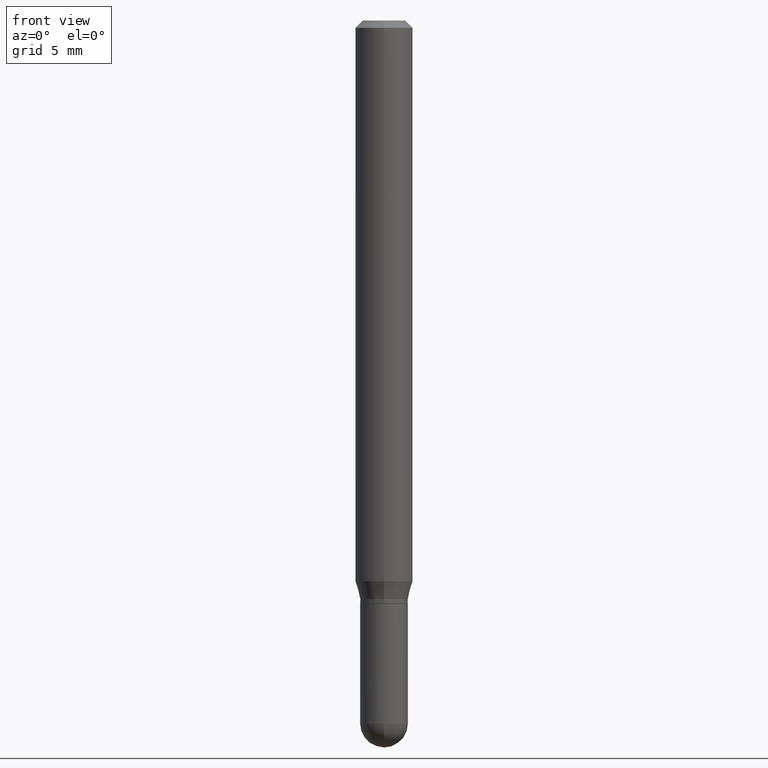
[diagram: clean part render]
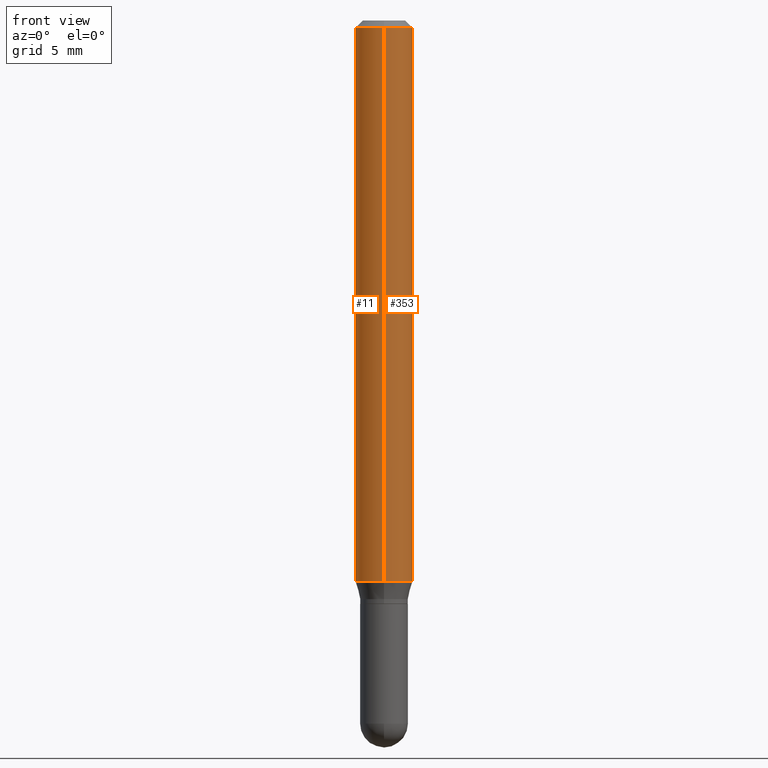
[diagram: same view with one multi-face feature highlighted, each face labeled with its STEP entity id]
A machine part, front view. The highlighted faces form ONE feature: a constant-radius fillet chain: 2 tangent blend faces with common blend radius 1.4999 mm. The faces share edges in the B-rep.
Their STEP definitions:
[1] entity #353 (Cylinder):
#37 = DIRECTION ( 'NONE',  ( -6.982962677686265922E-15, -1.000000000000000000, 3.505890868245046092E-15 ) ) ;
#38 = EDGE_CURVE ( 'NONE', #401, #357, #70, .T. ) ;
#42 = AXIS2_PLACEMENT_3D ( 'NONE', #90, #213, #438 ) ;
#56 = DIRECTION ( 'NONE',  ( -2.445524756156847955E-29, 3.491401215299180303E-15, 1.000000000000000000 ) ) ;
#70 = CIRCLE ( 'NONE', #483, 0.05904999999999999832 ) ;
#73 = DIRECTION ( 'NONE',  ( -2.445524756156847955E-29, 3.491401215299180303E-15, 1.000000000000000000 ) ) ;
#86 = CYLINDRICAL_SURFACE ( 'NONE', #42, 0.05904999999999999832 ) ;
#88 = ORIENTED_EDGE ( 'NONE', *, *, #38, .T. ) ;
#89 = EDGE_LOOP ( 'NONE', ( #88, #164, #244, #131 ) ) ;
#90 = CARTESIAN_POINT ( 'NONE',  ( 0.000000000000000000, 0.000000000000000000, 0.000000000000000000 ) ) ;
#94 = FACE_OUTER_BOUND ( 'NONE', #89, .T. ) ;
#107 = VERTEX_POINT ( 'NONE', #250 ) ;
#108 = EDGE_CURVE ( 'NONE', #357, #216, #404, .T. ) ;
#112 = VECTOR ( 'NONE', #415, 39.37007874015748143 ) ;
#119 = DIRECTION ( 'NONE',  ( -2.445524756156847955E-29, 3.491401215299180303E-15, 1.000000000000000000 ) ) ;
#120 = CIRCLE ( 'NONE', #484, 0.05904999999999999832 ) ;
#123 = CARTESIAN_POINT ( 'NONE',  ( 4.195754854663390985E-16, 0.05904999999999999832, -2.061672417634165953E-16 ) ) ;
#131 = ORIENTED_EDGE ( 'NONE', *, *, #161, .F. ) ;
#132 = CARTESIAN_POINT ( 'NONE',  ( -4.123439461173458309E-16, -0.05905000000000403676, -1.154039299545446706 ) ) ;
#161 = EDGE_CURVE ( 'NONE', #401, #107, #422, .T. ) ;
#164 = ORIENTED_EDGE ( 'NONE', *, *, #108, .T. ) ;
#165 = CARTESIAN_POINT ( 'NONE',  ( 2.822231676616298540E-29, -4.029214212935987923E-15, -1.154039299545446928 ) ) ;
#169 = DIRECTION ( 'NONE',  ( -6.982962677686265922E-15, -1.000000000000000000, 4.626330217890369336E-15 ) ) ;
#188 = CARTESIAN_POINT ( 'NONE',  ( 4.195754854663674975E-16, 0.05904999999999994975, -0.01500000000000029955 ) ) ;
#197 = EDGE_CURVE ( 'NONE', #107, #216, #120, .T. ) ;
#213 = DIRECTION ( 'NONE',  ( -2.445524756156847955E-29, 3.491401215299180303E-15, 1.000000000000000000 ) ) ;
#216 = VERTEX_POINT ( 'NONE', #188 ) ;
#244 = ORIENTED_EDGE ( 'NONE', *, *, #197, .F. ) ;
#245 = CARTESIAN_POINT ( 'NONE',  ( 4.195754854663672510E-16, 0.05904999999999595989, -1.154039299545446928 ) ) ;
#250 = CARTESIAN_POINT ( 'NONE',  ( -4.123439461173736383E-16, -0.05905000000000005383, -0.01499999999999988495 ) ) ;
#343 = VECTOR ( 'NONE', #119, 39.37007874015748143 ) ;
#353 = ADVANCED_FACE ( 'NONE', ( #94 ), #86, .T. ) ;
#357 = VERTEX_POINT ( 'NONE', #245 ) ;
#385 = CARTESIAN_POINT ( 'NONE',  ( -4.123439461173739834E-16, -0.05904999999999999832, 2.061672417634165953E-16 ) ) ;
#401 = VERTEX_POINT ( 'NONE', #132 ) ;
#404 = LINE ( 'NONE', #123, #112 ) ;
#415 = DIRECTION ( 'NONE',  ( -2.445524756156847955E-29, 3.491401215299180303E-15, 1.000000000000000000 ) ) ;
#422 = LINE ( 'NONE', #385, #343 ) ;
#438 = DIRECTION ( 'NONE',  ( -6.982962677686265922E-15, -1.000000000000000000, 3.491401215299180303E-15 ) ) ;
#462 = CARTESIAN_POINT ( 'NONE',  ( 3.668287134235294108E-31, -5.237101822948802526E-17, -0.01500000000000009139 ) ) ;
#483 = AXIS2_PLACEMENT_3D ( 'NONE', #165, #56, #169 ) ;
#484 = AXIS2_PLACEMENT_3D ( 'NONE', #462, #73, #37 ) ;
[2] entity #11 (Cylinder):
#10 = ORIENTED_EDGE ( 'NONE', *, *, #161, .T. ) ;
#11 = ADVANCED_FACE ( 'NONE', ( #327 ), #317, .T. ) ;
#13 = CARTESIAN_POINT ( 'NONE',  ( 0.000000000000000000, 0.000000000000000000, 0.000000000000000000 ) ) ;
#21 = CARTESIAN_POINT ( 'NONE',  ( 2.822231676616298540E-29, -4.029214212935987923E-15, -1.154039299545446928 ) ) ;
#34 = EDGE_CURVE ( 'NONE', #357, #401, #417, .T. ) ;
#50 = ORIENTED_EDGE ( 'NONE', *, *, #296, .F. ) ;
#52 = DIRECTION ( 'NONE',  ( -2.445524756156847955E-29, 3.491401215299180303E-15, 1.000000000000000000 ) ) ;
#107 = VERTEX_POINT ( 'NONE', #250 ) ;
#108 = EDGE_CURVE ( 'NONE', #357, #216, #404, .T. ) ;
#112 = VECTOR ( 'NONE', #415, 39.37007874015748143 ) ;
#119 = DIRECTION ( 'NONE',  ( -2.445524756156847955E-29, 3.491401215299180303E-15, 1.000000000000000000 ) ) ;
#123 = CARTESIAN_POINT ( 'NONE',  ( 4.195754854663390985E-16, 0.05904999999999999832, -2.061672417634165953E-16 ) ) ;
#132 = CARTESIAN_POINT ( 'NONE',  ( -4.123439461173458309E-16, -0.05905000000000403676, -1.154039299545446706 ) ) ;
#133 = ORIENTED_EDGE ( 'NONE', *, *, #108, .F. ) ;
#161 = EDGE_CURVE ( 'NONE', #401, #107, #422, .T. ) ;
#188 = CARTESIAN_POINT ( 'NONE',  ( 4.195754854663674975E-16, 0.05904999999999994975, -0.01500000000000029955 ) ) ;
#216 = VERTEX_POINT ( 'NONE', #188 ) ;
#222 = CARTESIAN_POINT ( 'NONE',  ( 3.668287134235294108E-31, -5.237101822948802526E-17, -0.01500000000000009139 ) ) ;
#237 = AXIS2_PLACEMENT_3D ( 'NONE', #13, #52, #286 ) ;
#245 = CARTESIAN_POINT ( 'NONE',  ( 4.195754854663672510E-16, 0.05904999999999595989, -1.154039299545446928 ) ) ;
#248 = EDGE_LOOP ( 'NONE', ( #133, #379, #10, #50 ) ) ;
#250 = CARTESIAN_POINT ( 'NONE',  ( -4.123439461173736383E-16, -0.05905000000000005383, -0.01499999999999988495 ) ) ;
#254 = DIRECTION ( 'NONE',  ( -2.445524756156847955E-29, 3.491401215299180303E-15, 1.000000000000000000 ) ) ;
#267 = AXIS2_PLACEMENT_3D ( 'NONE', #21, #254, #454 ) ;
#270 = DIRECTION ( 'NONE',  ( -2.445524756156847955E-29, 3.491401215299180303E-15, 1.000000000000000000 ) ) ;
#286 = DIRECTION ( 'NONE',  ( -6.982962677686265922E-15, -1.000000000000000000, 3.491401215299180303E-15 ) ) ;
#296 = EDGE_CURVE ( 'NONE', #216, #107, #430, .T. ) ;
#317 = CYLINDRICAL_SURFACE ( 'NONE', #237, 0.05904999999999999832 ) ;
#327 = FACE_OUTER_BOUND ( 'NONE', #248, .T. ) ;
#343 = VECTOR ( 'NONE', #119, 39.37007874015748143 ) ;
#357 = VERTEX_POINT ( 'NONE', #245 ) ;
#379 = ORIENTED_EDGE ( 'NONE', *, *, #34, .T. ) ;
#385 = CARTESIAN_POINT ( 'NONE',  ( -4.123439461173739834E-16, -0.05904999999999999832, 2.061672417634165953E-16 ) ) ;
#401 = VERTEX_POINT ( 'NONE', #132 ) ;
#404 = LINE ( 'NONE', #123, #112 ) ;
#415 = DIRECTION ( 'NONE',  ( -2.445524756156847955E-29, 3.491401215299180303E-15, 1.000000000000000000 ) ) ;
#417 = CIRCLE ( 'NONE', #267, 0.05904999999999999832 ) ;
#422 = LINE ( 'NONE', #385, #343 ) ;
#430 = CIRCLE ( 'NONE', #474, 0.05904999999999999832 ) ;
#454 = DIRECTION ( 'NONE',  ( -6.982962677686265922E-15, -1.000000000000000000, 4.626330217890369336E-15 ) ) ;
#474 = AXIS2_PLACEMENT_3D ( 'NONE', #222, #270, #511 ) ;
#511 = DIRECTION ( 'NONE',  ( -6.982962677686265922E-15, -1.000000000000000000, 3.505890868245046092E-15 ) ) ;